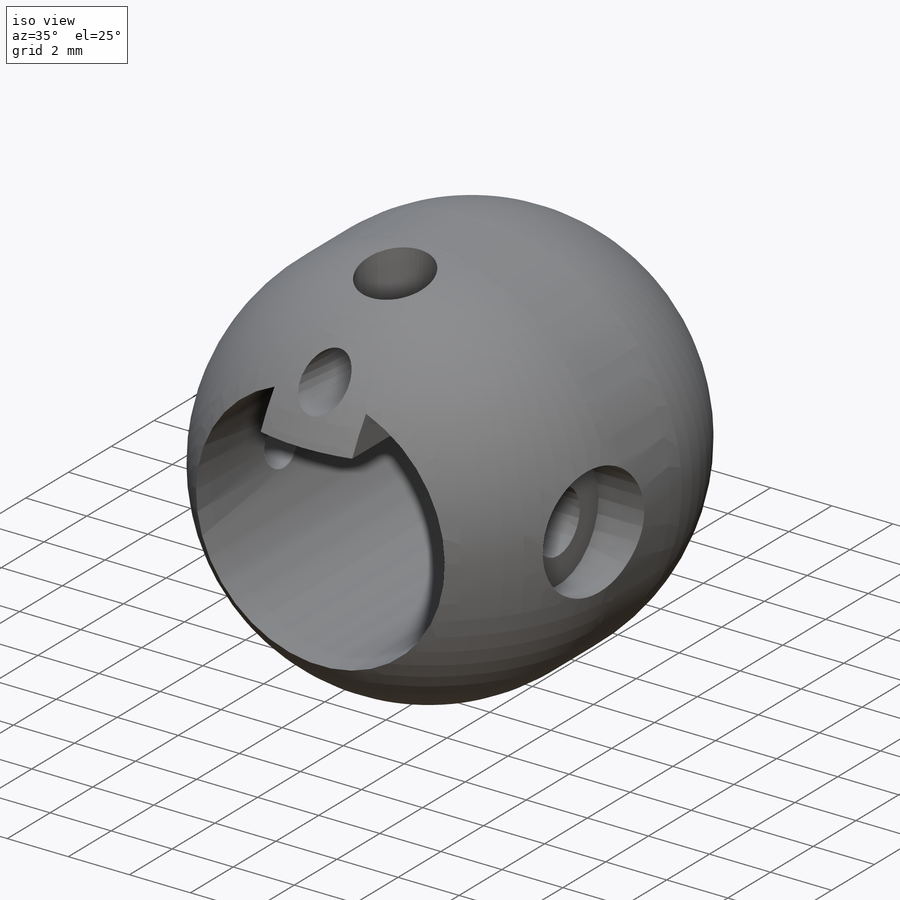
[diagram: iso view]
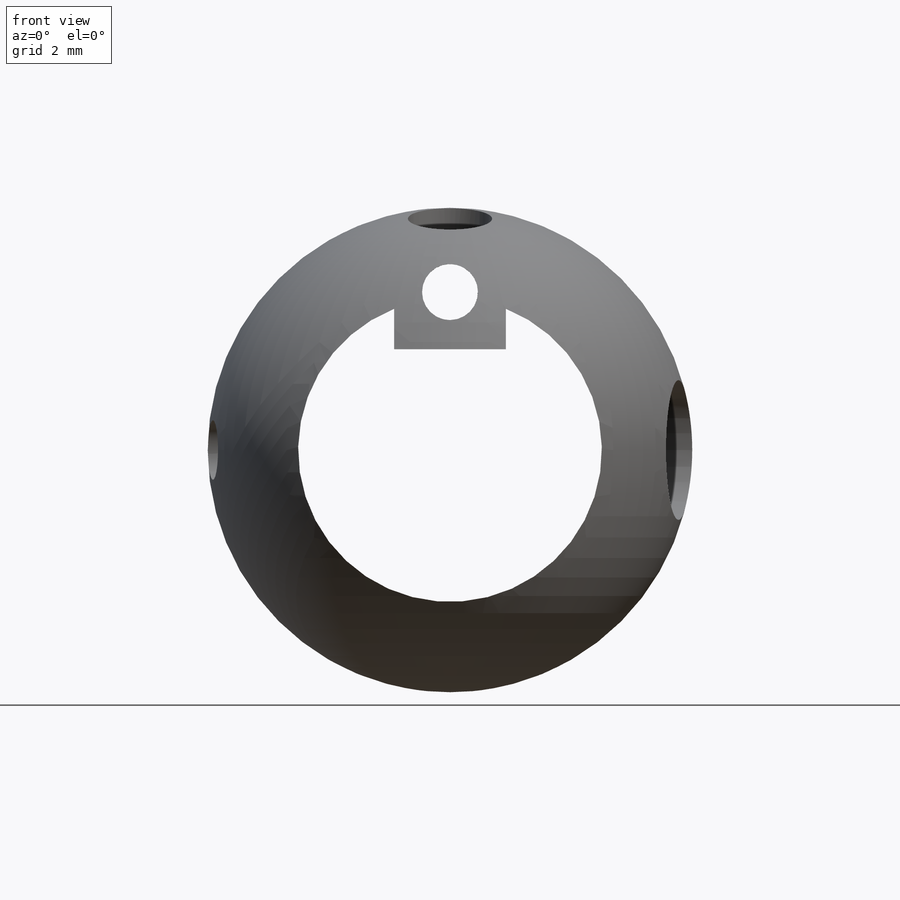
[diagram: front view]
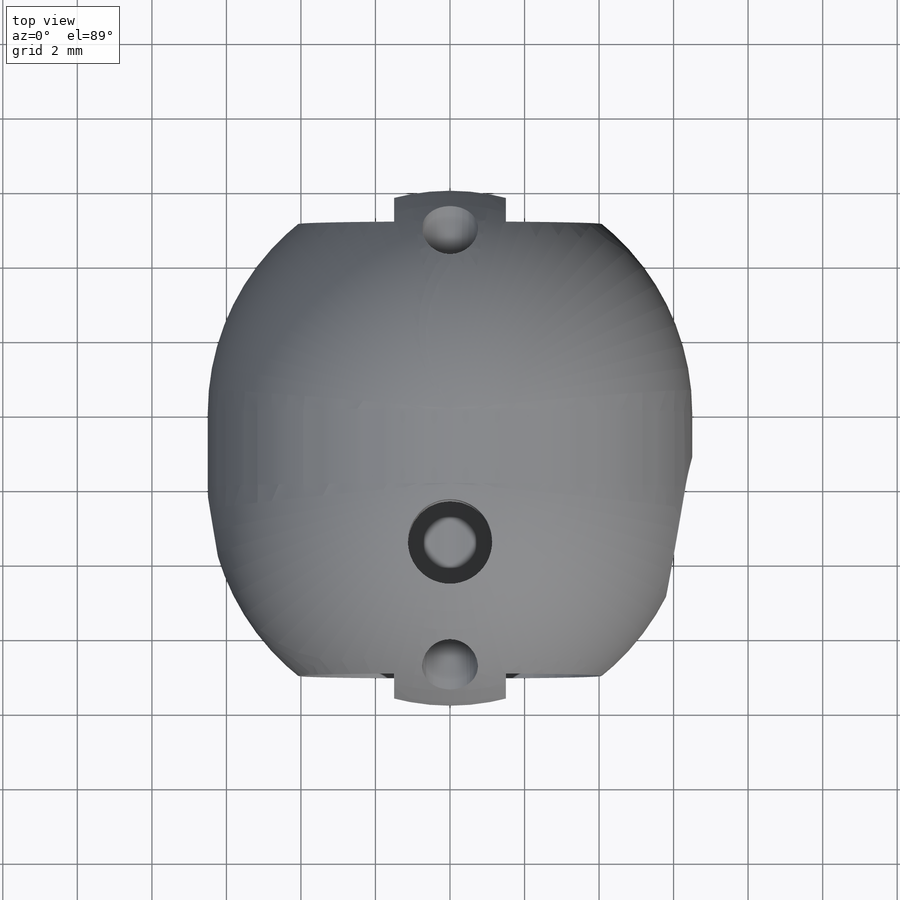
[diagram: top view]
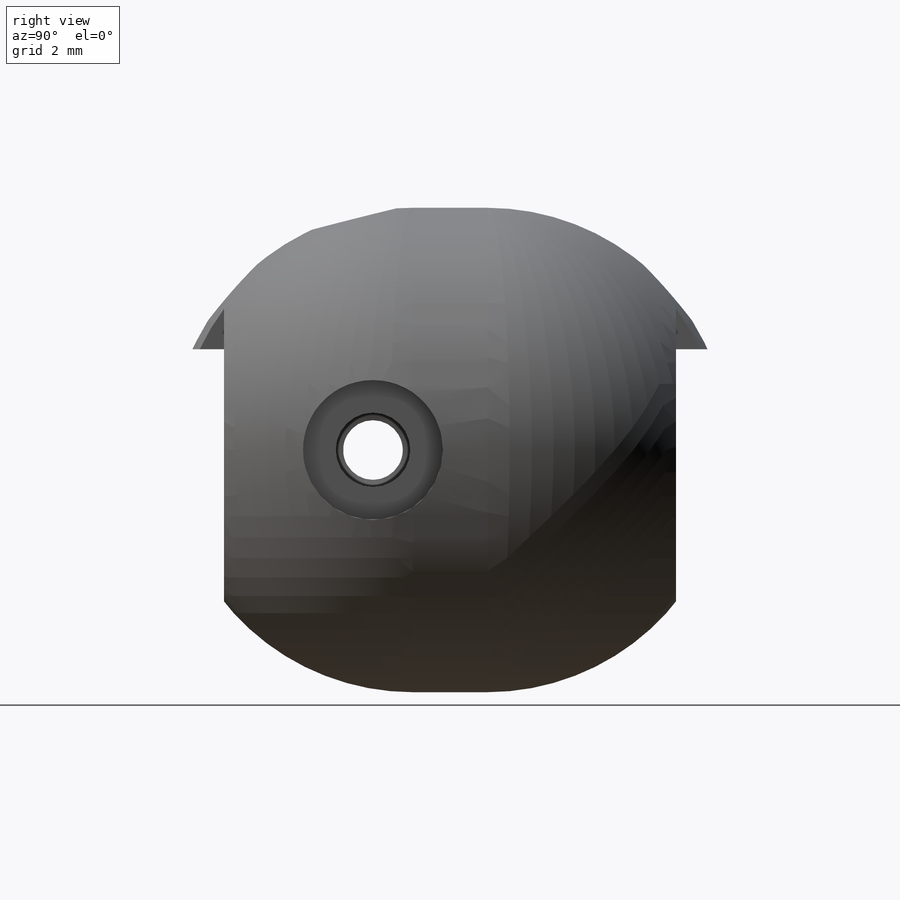
[diagram: right view]
SOLIDWORKS PART (.sldprt)
format: sldprt  version: not decoded by parser v0  size: 438,272 bytes
history: native  units: mm
features: sketch x12, cut_extrude x8, plane x3, revolve x2, material x1, extrude x1 (+13 scaffold rows collapsed)
feature tree (40):
  scaffold x13  (default folders/planes/origin — collapsed)
  material  "Material <not specified>"
  sketch  "Sketch1"  dims[c1.D1=4.5mm c1.D2=7.95mm c1.D3=~6.823631mm c1.D4=6.5mm c1.D5=1.5mm c2.D3=6.5mm c2.D6=6.5mm c2.D7=~5.094632mm c3.D7=45.0deg c3.D5=0.1mm]
  plane  "Plane1"
  plane  "Plane2"
  plane  "Plane3"
  sketch  "Sketch3"
  revolve  "body"  Angle=180deg
  sketch  "Sketch5"  dims[c1.D2=~1.052705mm c1.D3=~2.435501mm c2.D2=3.0mm c2.D3=0.1mm c2.D4=~0.986055mm c2.D1=0.1mm]
  cut_extrude  "hole for handle"  [1 undecoded]
  sketch  "Sketch6"  dims[c1.D1=~3.402475mm c1.D2=2.2606mm c2.D1=3.5mm c2.D3=1.0mm]
  cut_extrude  "5-40 set screw hole"  Depth=7mm
  sketch  "Sketch8"  dims[D1=1.5mm]
  cut_extrude  "hole for cable"  Depth=7mm
  sketch  "Sketch9"
  extrude  "Boss-Extrude1"  Depth=2mm
  sketch  "Sketch10"  dims[D1=1.6mm D2=~5.25149mm]
  cut_extrude  "2X0.4 screw hole"  [1 undecoded]
  sketch  "Sketch11"  dims[D1=2.0mm]
  cut_extrude  "Cut-Extrude5"  Depth=4mm
  sketch  "Sketch12"  dims[D1=3.75mm]
  cut_extrude  "Cut-Extrude6"  Depth=1.5mm
  sketch  "Sketch13"
  revolve  "Revolve4"  Angle=180deg
  sketch  "Sketch14"  dims[D1=0.0mm]
  cut_extrude  "Cut-Extrude7"  [1 undecoded]
  sketch  "Sketch15"  dims[c1.D1=~21.85212mm c1.D2=~7.481493mm c2.D1=~1.332183mm]
  cut_extrude  "Cut-Extrude9"  [1 undecoded]
decode coverage: 16 of 23 modeling features carry decoded parameters
note: ~ marks probable driven/reference dimensions
note: 4 parameter values undecoded
summary: no parameter record found for 4 features
note: suppression state not decoded; provenance and decode notes live in map.json
